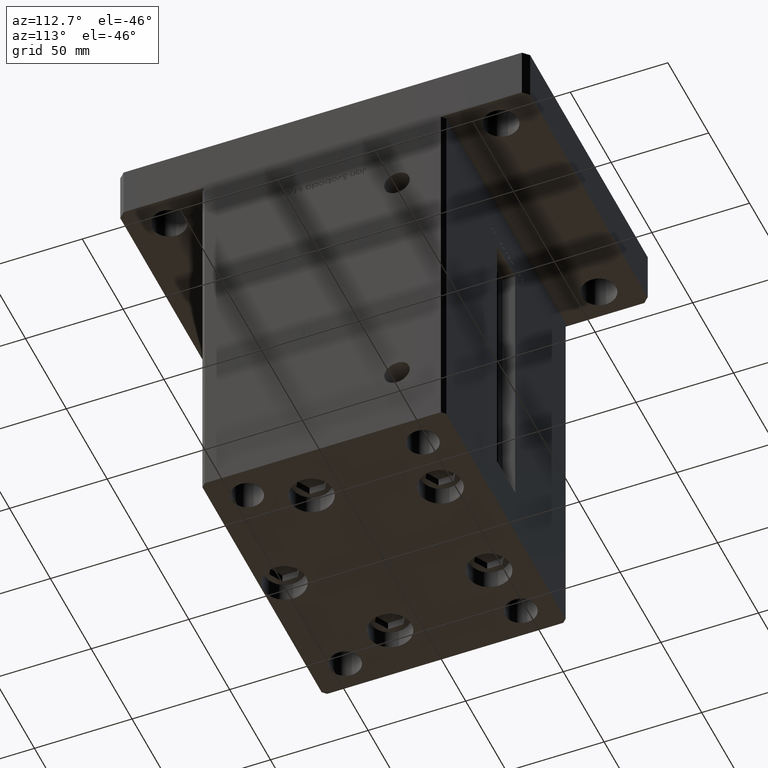
[diagram: clean part render]
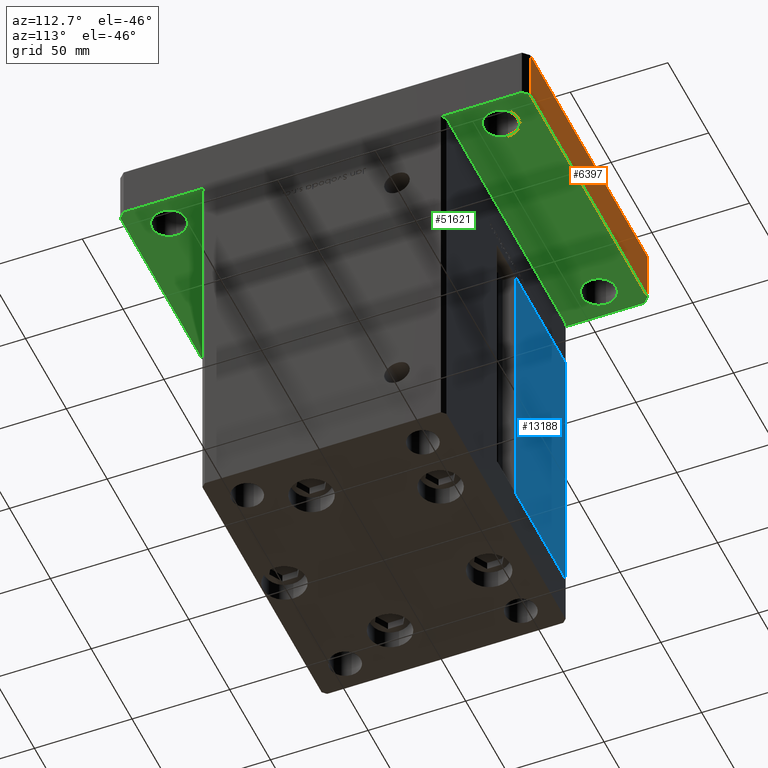
[diagram: same view with three faces highlighted in distinct colors, each labeled with its STEP entity id]
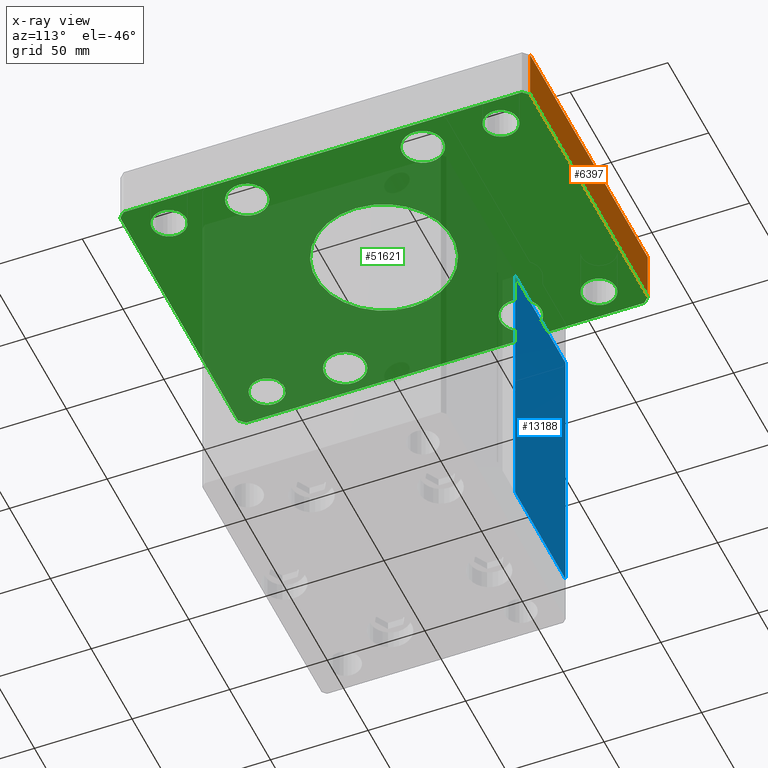
[diagram: x-ray of the same camera — body ghosted, the three highlighted faces saturated]
A machine part, auxiliary view with three faces highlighted in distinct colors.
The next image is the same camera in x-ray (body ghosted, the three faces saturated) — at least one of them is partly hidden behind the body in this view.
Their STEP definitions:

[orange] entity #6397 — the highlighted planar face has unit normal (0, -1, 0).
#948 = VERTEX_POINT ( 'NONE', #41207 ) ;
#1485 = LINE ( 'NONE', #47821, #24096 ) ;
#3086 = VECTOR ( 'NONE', #52375, 1000.000000000000000 ) ;
#5317 = AXIS2_PLACEMENT_3D ( 'NONE', #6323, #14721, #10396 ) ;
#6323 = CARTESIAN_POINT ( 'NONE',  ( 72.00000000000004263, 105.0000000000000284, 27.00000000000000000 ) ) ;
#6397 = ADVANCED_FACE ( 'NONE', ( #30983 ), #43440, .F. ) ;
#6796 = CARTESIAN_POINT ( 'NONE',  ( 72.00000000000004263, 105.0000000000000284, 0.000000000000000000 ) ) ;
#7723 = DIRECTION ( 'NONE',  ( -0.000000000000000000, -0.000000000000000000, -1.000000000000000000 ) ) ;
#9219 = ORIENTED_EDGE ( 'NONE', *, *, #34961, .F. ) ;
#10396 = DIRECTION ( 'NONE',  ( 1.000000000000000000, 1.927470528863118309E-16, 0.000000000000000000 ) ) ;
#10920 = VECTOR ( 'NONE', #7723, 1000.000000000000000 ) ;
#11326 = ORIENTED_EDGE ( 'NONE', *, *, #23750, .T. ) ;
#14451 = VERTEX_POINT ( 'NONE', #6796 ) ;
#14721 = DIRECTION ( 'NONE',  ( 1.927470528863118309E-16, -1.000000000000000000, 0.000000000000000000 ) ) ;
#15074 = VERTEX_POINT ( 'NONE', #44522 ) ;
#18293 = DIRECTION ( 'NONE',  ( -0.000000000000000000, -0.000000000000000000, -1.000000000000000000 ) ) ;
#20325 = ORIENTED_EDGE ( 'NONE', *, *, #43012, .T. ) ;
#20676 = EDGE_LOOP ( 'NONE', ( #11326, #9219, #42609, #20325 ) ) ;
#23750 = EDGE_CURVE ( 'NONE', #14451, #948, #38634, .T. ) ;
#24096 = VECTOR ( 'NONE', #18293, 1000.000000000000000 ) ;
#27256 = CARTESIAN_POINT ( 'NONE',  ( -72.00000000000002842, 105.0000000000000000, 27.00000000000000000 ) ) ;
#28755 = LINE ( 'NONE', #45291, #3086 ) ;
#30983 = FACE_OUTER_BOUND ( 'NONE', #20676, .T. ) ;
#33533 = EDGE_CURVE ( 'NONE', #15074, #53072, #28755, .T. ) ;
#34961 = EDGE_CURVE ( 'NONE', #53072, #948, #44591, .T. ) ;
#38634 = LINE ( 'NONE', #42693, #49887 ) ;
#41207 = CARTESIAN_POINT ( 'NONE',  ( -72.00000000000002842, 105.0000000000000000, 0.000000000000000000 ) ) ;
#42609 = ORIENTED_EDGE ( 'NONE', *, *, #33533, .F. ) ;
#42693 = CARTESIAN_POINT ( 'NONE',  ( 72.00000000000004263, 105.0000000000000284, 0.000000000000000000 ) ) ;
#42936 = CARTESIAN_POINT ( 'NONE',  ( -72.00000000000002842, 105.0000000000000000, 27.00000000000000000 ) ) ;
#43012 = EDGE_CURVE ( 'NONE', #15074, #14451, #1485, .T. ) ;
#43440 = PLANE ( 'NONE',  #5317 ) ;
#44522 = CARTESIAN_POINT ( 'NONE',  ( 72.00000000000004263, 105.0000000000000284, 27.00000000000000000 ) ) ;
#44591 = LINE ( 'NONE', #27256, #10920 ) ;
#45291 = CARTESIAN_POINT ( 'NONE',  ( 72.00000000000004263, 105.0000000000000284, 27.00000000000000000 ) ) ;
#46768 = DIRECTION ( 'NONE',  ( -1.000000000000000000, -1.927470528863118062E-16, 0.000000000000000000 ) ) ;
#47821 = CARTESIAN_POINT ( 'NONE',  ( 72.00000000000004263, 105.0000000000000284, 27.00000000000000000 ) ) ;
#49887 = VECTOR ( 'NONE', #46768, 1000.000000000000000 ) ;
#52375 = DIRECTION ( 'NONE',  ( -1.000000000000000000, -1.927470528863118062E-16, 0.000000000000000000 ) ) ;
#53072 = VERTEX_POINT ( 'NONE', #42936 ) ;

[blue] entity #13188 — the highlighted planar face has unit normal (-0, -1, 0).
#2451 = VERTEX_POINT ( 'NONE', #28893 ) ;
#3032 = CARTESIAN_POINT ( 'NONE',  ( -11.25000000000000178, 62.49999999999999289, 0.000000000000000000 ) ) ;
#4527 = DIRECTION ( 'NONE',  ( -0.000000000000000000, -0.000000000000000000, 1.000000000000000000 ) ) ;
#7475 = VECTOR ( 'NONE', #53492, 1000.000000000000000 ) ;
#7972 = VECTOR ( 'NONE', #4527, 1000.000000000000000 ) ;
#8443 = EDGE_CURVE ( 'NONE', #11455, #2451, #53307, .T. ) ;
#8550 = LINE ( 'NONE', #8822, #35327 ) ;
#8822 = CARTESIAN_POINT ( 'NONE',  ( -11.25000000000000178, 62.49999999999999289, 147.0000000000000000 ) ) ;
#11455 = VERTEX_POINT ( 'NONE', #43471 ) ;
#11592 = CARTESIAN_POINT ( 'NONE',  ( -11.25000000000000178, 62.49999999999999289, 0.000000000000000000 ) ) ;
#13188 = ADVANCED_FACE ( 'NONE', ( #18969 ), #52034, .F. ) ;
#17810 = ORIENTED_EDGE ( 'NONE', *, *, #8443, .F. ) ;
#18969 = FACE_OUTER_BOUND ( 'NONE', #37099, .T. ) ;
#19238 = ORIENTED_EDGE ( 'NONE', *, *, #41152, .T. ) ;
#20743 = CARTESIAN_POINT ( 'NONE',  ( -73.00000000000001421, 62.50000000000000000, 0.000000000000000000 ) ) ;
#24075 = EDGE_CURVE ( 'NONE', #45197, #39885, #49434, .T. ) ;
#27316 = VECTOR ( 'NONE', #36109, 1000.000000000000000 ) ;
#27627 = DIRECTION ( 'NONE',  ( -1.123707514802790025E-16, -1.000000000000000000, 0.000000000000000000 ) ) ;
#28893 = CARTESIAN_POINT ( 'NONE',  ( -11.25000000000000178, 62.49999999999999289, 147.0000000000000000 ) ) ;
#30156 = ORIENTED_EDGE ( 'NONE', *, *, #24075, .F. ) ;
#33574 = EDGE_CURVE ( 'NONE', #11455, #39885, #40167, .T. ) ;
#33983 = AXIS2_PLACEMENT_3D ( 'NONE', #48767, #27627, #39554 ) ;
#35327 = VECTOR ( 'NONE', #45398, 1000.000000000000000 ) ;
#36109 = DIRECTION ( 'NONE',  ( -1.000000000000000000, 1.123707514802790025E-16, 0.000000000000000000 ) ) ;
#37099 = EDGE_LOOP ( 'NONE', ( #19238, #17810, #47288, #30156 ) ) ;
#39554 = DIRECTION ( 'NONE',  ( 1.000000000000000000, -1.123707514802790025E-16, 0.000000000000000000 ) ) ;
#39885 = VERTEX_POINT ( 'NONE', #20743 ) ;
#40167 = LINE ( 'NONE', #3032, #27316 ) ;
#40981 = CARTESIAN_POINT ( 'NONE',  ( -73.00000000000001421, 62.50000000000000000, 147.0000000000000000 ) ) ;
#41152 = EDGE_CURVE ( 'NONE', #45197, #2451, #8550, .T. ) ;
#43471 = CARTESIAN_POINT ( 'NONE',  ( -11.25000000000000178, 62.49999999999999289, 0.000000000000000000 ) ) ;
#45197 = VERTEX_POINT ( 'NONE', #40981 ) ;
#45398 = DIRECTION ( 'NONE',  ( 1.000000000000000000, 0.000000000000000000, 0.000000000000000000 ) ) ;
#47288 = ORIENTED_EDGE ( 'NONE', *, *, #33574, .T. ) ;
#48767 = CARTESIAN_POINT ( 'NONE',  ( -11.25000000000000178, 62.49999999999999289, 147.0000000000000000 ) ) ;
#48904 = CARTESIAN_POINT ( 'NONE',  ( -73.00000000000001421, 62.50000000000000000, 147.0000000000000000 ) ) ;
#49434 = LINE ( 'NONE', #48904, #7475 ) ;
#52034 = PLANE ( 'NONE',  #33983 ) ;
#53307 = LINE ( 'NONE', #11592, #7972 ) ;
#53492 = DIRECTION ( 'NONE',  ( -0.000000000000000000, -0.000000000000000000, -1.000000000000000000 ) ) ;

[green] entity #51621 — the highlighted planar face has unit normal (0, 0, 1).
#502 = CARTESIAN_POINT ( 'NONE',  ( -68.74999999999997158, -85.00000000000001421, 0.000000000000000000 ) ) ;
#608 = CARTESIAN_POINT ( 'NONE',  ( 60.00000000000000000, 45.00000000000000711, 0.000000000000000000 ) ) ;
#730 = CARTESIAN_POINT ( 'NONE',  ( 68.74999999999997158, -85.00000000000001421, 0.000000000000000000 ) ) ;
#948 = VERTEX_POINT ( 'NONE', #41207 ) ;
#1112 = EDGE_LOOP ( 'NONE', ( #14267, #49688 ) ) ;
#1334 = VERTEX_POINT ( 'NONE', #29774 ) ;
#1601 = PLANE ( 'NONE',  #44135 ) ;
#1642 = LINE ( 'NONE', #39302, #46793 ) ;
#1759 = CIRCLE ( 'NONE', #13040, 10.49999999999999467 ) ;
#1982 = ORIENTED_EDGE ( 'NONE', *, *, #2959, .F. ) ;
#2125 = EDGE_LOOP ( 'NONE', ( #21138, #11535 ) ) ;
#2617 = CIRCLE ( 'NONE', #52810, 8.750000000000007105 ) ;
#2660 = CIRCLE ( 'NONE', #18223, 35.00000000000000711 ) ;
#2684 = VERTEX_POINT ( 'NONE', #14518 ) ;
#2808 = EDGE_CURVE ( 'NONE', #37066, #51173, #45038, .T. ) ;
#2959 = EDGE_CURVE ( 'NONE', #15333, #47574, #1642, .T. ) ;
#3508 = CIRCLE ( 'NONE', #14772, 10.50000000000000178 ) ;
#4037 = CARTESIAN_POINT ( 'NONE',  ( -75.00000000000001421, 102.0000000000000000, 0.000000000000000000 ) ) ;
#4343 = DIRECTION ( 'NONE',  ( 0.000000000000000000, 0.000000000000000000, 1.000000000000000000 ) ) ;
#4400 = CARTESIAN_POINT ( 'NONE',  ( 0.000000000000000000, 0.000000000000000000, 0.000000000000000000 ) ) ;
#4515 = DIRECTION ( 'NONE',  ( 0.7071067811865474617, -0.7071067811865474617, 0.000000000000000000 ) ) ;
#4609 = VERTEX_POINT ( 'NONE', #32076 ) ;
#5109 = CIRCLE ( 'NONE', #33669, 10.50000000000000178 ) ;
#5149 = EDGE_CURVE ( 'NONE', #32202, #1334, #30380, .T. ) ;
#5232 = EDGE_CURVE ( 'NONE', #948, #29208, #46879, .T. ) ;
#5371 = EDGE_LOOP ( 'NONE', ( #41903, #14255 ) ) ;
#5435 = CIRCLE ( 'NONE', #40888, 10.49999999999999467 ) ;
#5480 = DIRECTION ( 'NONE',  ( 1.000000000000000000, 0.000000000000000000, 0.000000000000000000 ) ) ;
#5493 = DIRECTION ( 'NONE',  ( 0.7071067811865459074, 0.7071067811865491270, 0.000000000000000000 ) ) ;
#5559 = CARTESIAN_POINT ( 'NONE',  ( 60.00000000000000000, -45.00000000000000711, 0.000000000000000000 ) ) ;
#5941 = FACE_BOUND ( 'NONE', #53375, .T. ) ;
#5976 = VERTEX_POINT ( 'NONE', #42177 ) ;
#6003 = CARTESIAN_POINT ( 'NONE',  ( 49.50000000000000000, -45.00000000000000711, 0.000000000000000000 ) ) ;
#6028 = DIRECTION ( 'NONE',  ( -1.000000000000000000, 0.000000000000000000, 0.000000000000000000 ) ) ;
#6762 = DIRECTION ( 'NONE',  ( 0.000000000000000000, 0.000000000000000000, 1.000000000000000000 ) ) ;
#6796 = CARTESIAN_POINT ( 'NONE',  ( 72.00000000000004263, 105.0000000000000284, 0.000000000000000000 ) ) ;
#6855 = VERTEX_POINT ( 'NONE', #28850 ) ;
#7312 = EDGE_CURVE ( 'NONE', #50404, #37632, #15767, .T. ) ;
#8360 = DIRECTION ( 'NONE',  ( 1.000000000000000000, 0.000000000000000000, 0.000000000000000000 ) ) ;
#9227 = FACE_BOUND ( 'NONE', #5371, .T. ) ;
#9475 = ORIENTED_EDGE ( 'NONE', *, *, #10039, .T. ) ;
#9562 = AXIS2_PLACEMENT_3D ( 'NONE', #33017, #32481, #8360 ) ;
#9815 = ORIENTED_EDGE ( 'NONE', *, *, #49256, .F. ) ;
#9922 = CIRCLE ( 'NONE', #35018, 8.750000000000007105 ) ;
#10025 = DIRECTION ( 'NONE',  ( -0.7071067811865459074, -0.7071067811865491270, 0.000000000000000000 ) ) ;
#10039 = EDGE_CURVE ( 'NONE', #1334, #32202, #5435, .T. ) ;
#10588 = VECTOR ( 'NONE', #41607, 1000.000000000000000 ) ;
#10648 = CARTESIAN_POINT ( 'NONE',  ( 60.00000000000000000, 84.99999999999998579, 0.000000000000000000 ) ) ;
#11251 = CARTESIAN_POINT ( 'NONE',  ( 60.00000000000000000, 84.99999999999998579, 0.000000000000000000 ) ) ;
#11535 = ORIENTED_EDGE ( 'NONE', *, *, #49061, .T. ) ;
#11854 = EDGE_CURVE ( 'NONE', #47574, #29749, #17695, .T. ) ;
#11994 = CARTESIAN_POINT ( 'NONE',  ( 75.00000000000001421, 102.0000000000000142, 0.000000000000000000 ) ) ;
#12159 = AXIS2_PLACEMENT_3D ( 'NONE', #53169, #16044, #24703 ) ;
#12423 = EDGE_CURVE ( 'NONE', #29749, #31645, #12624, .T. ) ;
#12624 = LINE ( 'NONE', #29151, #10588 ) ;
#12694 = DIRECTION ( 'NONE',  ( 0.000000000000000000, 0.000000000000000000, 1.000000000000000000 ) ) ;
#13040 = AXIS2_PLACEMENT_3D ( 'NONE', #5559, #18031, #51087 ) ;
#13504 = CARTESIAN_POINT ( 'NONE',  ( -60.00000000000000000, 45.00000000000001421, 0.000000000000000000 ) ) ;
#13551 = FACE_BOUND ( 'NONE', #28147, .T. ) ;
#13703 = EDGE_CURVE ( 'NONE', #28355, #19164, #52160, .T. ) ;
#13738 = EDGE_CURVE ( 'NONE', #39657, #15333, #16986, .T. ) ;
#14255 = ORIENTED_EDGE ( 'NONE', *, *, #48698, .T. ) ;
#14267 = ORIENTED_EDGE ( 'NONE', *, *, #16553, .T. ) ;
#14451 = VERTEX_POINT ( 'NONE', #6796 ) ;
#14518 = CARTESIAN_POINT ( 'NONE',  ( -68.75000000000000000, 84.99999999999997158, 0.000000000000000000 ) ) ;
#14743 = AXIS2_PLACEMENT_3D ( 'NONE', #50724, #22978, #27848 ) ;
#14772 = AXIS2_PLACEMENT_3D ( 'NONE', #13504, #12694, #49554 ) ;
#14824 = EDGE_LOOP ( 'NONE', ( #52243, #34977 ) ) ;
#15080 = ORIENTED_EDGE ( 'NONE', *, *, #7312, .F. ) ;
#15333 = VERTEX_POINT ( 'NONE', #19801 ) ;
#15631 = ORIENTED_EDGE ( 'NONE', *, *, #18850, .T. ) ;
#15767 = CIRCLE ( 'NONE', #49493, 35.00000000000000711 ) ;
#16044 = DIRECTION ( 'NONE',  ( 0.000000000000000000, 0.000000000000000000, 1.000000000000000000 ) ) ;
#16267 = EDGE_CURVE ( 'NONE', #2684, #37175, #27122, .T. ) ;
#16553 = EDGE_CURVE ( 'NONE', #51173, #37066, #20198, .T. ) ;
#16986 = LINE ( 'NONE', #41629, #37458 ) ;
#17049 = CARTESIAN_POINT ( 'NONE',  ( -75.00000000000001421, 102.0000000000000000, 0.000000000000000000 ) ) ;
#17268 = AXIS2_PLACEMENT_3D ( 'NONE', #27799, #39997, #22932 ) ;
#17695 = LINE ( 'NONE', #34222, #33093 ) ;
#17951 = DIRECTION ( 'NONE',  ( 0.000000000000000000, 0.000000000000000000, 1.000000000000000000 ) ) ;
#18031 = DIRECTION ( 'NONE',  ( 0.000000000000000000, 0.000000000000000000, 1.000000000000000000 ) ) ;
#18078 = AXIS2_PLACEMENT_3D ( 'NONE', #23255, #19192, #23794 ) ;
#18143 = DIRECTION ( 'NONE',  ( 1.000000000000000000, 0.000000000000000000, -0.000000000000000000 ) ) ;
#18223 = AXIS2_PLACEMENT_3D ( 'NONE', #25299, #45350, #6028 ) ;
#18850 = EDGE_CURVE ( 'NONE', #37175, #2684, #9922, .T. ) ;
#19164 = VERTEX_POINT ( 'NONE', #33778 ) ;
#19192 = DIRECTION ( 'NONE',  ( 0.000000000000000000, 0.000000000000000000, 1.000000000000000000 ) ) ;
#19436 = CARTESIAN_POINT ( 'NONE',  ( -70.50000000000000000, -45.00000000000000000, 0.000000000000000000 ) ) ;
#19801 = CARTESIAN_POINT ( 'NONE',  ( -71.99999999999998579, -105.0000000000000142, 0.000000000000000000 ) ) ;
#20198 = CIRCLE ( 'NONE', #40128, 8.750000000000007105 ) ;
#20766 = AXIS2_PLACEMENT_3D ( 'NONE', #39686, #26166, #26951 ) ;
#20941 = DIRECTION ( 'NONE',  ( 0.000000000000000000, 0.000000000000000000, -1.000000000000000000 ) ) ;
#21138 = ORIENTED_EDGE ( 'NONE', *, *, #46909, .T. ) ;
#21956 = DIRECTION ( 'NONE',  ( 0.000000000000000000, 0.000000000000000000, 1.000000000000000000 ) ) ;
#22114 = CARTESIAN_POINT ( 'NONE',  ( 68.75000000000000000, 84.99999999999998579, 0.000000000000000000 ) ) ;
#22181 = EDGE_LOOP ( 'NONE', ( #25938, #9475 ) ) ;
#22517 = DIRECTION ( 'NONE',  ( 1.000000000000000000, 7.709882115452476194E-16, 0.000000000000000000 ) ) ;
#22660 = VERTEX_POINT ( 'NONE', #19436 ) ;
#22932 = DIRECTION ( 'NONE',  ( 1.000000000000000000, 0.000000000000000000, 0.000000000000000000 ) ) ;
#22978 = DIRECTION ( 'NONE',  ( 0.000000000000000000, 0.000000000000000000, 1.000000000000000000 ) ) ;
#23255 = CARTESIAN_POINT ( 'NONE',  ( -59.99999999999997158, -85.00000000000001421, 0.000000000000000000 ) ) ;
#23279 = ORIENTED_EDGE ( 'NONE', *, *, #5232, .F. ) ;
#23392 = VERTEX_POINT ( 'NONE', #502 ) ;
#23399 = EDGE_CURVE ( 'NONE', #29208, #39657, #25444, .T. ) ;
#23750 = EDGE_CURVE ( 'NONE', #14451, #948, #38634, .T. ) ;
#23794 = DIRECTION ( 'NONE',  ( 1.000000000000000000, 0.000000000000000000, 0.000000000000000000 ) ) ;
#24301 = DIRECTION ( 'NONE',  ( 1.000000000000000000, 0.000000000000000000, 0.000000000000000000 ) ) ;
#24703 = DIRECTION ( 'NONE',  ( 1.000000000000000000, 0.000000000000000000, 0.000000000000000000 ) ) ;
#25299 = CARTESIAN_POINT ( 'NONE',  ( 0.000000000000000000, 0.000000000000000000, 0.000000000000000000 ) ) ;
#25386 = DIRECTION ( 'NONE',  ( 0.000000000000000000, 0.000000000000000000, 1.000000000000000000 ) ) ;
#25444 = LINE ( 'NONE', #17049, #38615 ) ;
#25568 = ORIENTED_EDGE ( 'NONE', *, *, #13738, .F. ) ;
#25643 = DIRECTION ( 'NONE',  ( 1.000000000000000000, 0.000000000000000000, 0.000000000000000000 ) ) ;
#25938 = ORIENTED_EDGE ( 'NONE', *, *, #5149, .T. ) ;
#26009 = DIRECTION ( 'NONE',  ( 0.000000000000000000, 0.000000000000000000, 1.000000000000000000 ) ) ;
#26166 = DIRECTION ( 'NONE',  ( 0.000000000000000000, 0.000000000000000000, 1.000000000000000000 ) ) ;
#26373 = CARTESIAN_POINT ( 'NONE',  ( -51.24999999999996447, -85.00000000000001421, 0.000000000000000000 ) ) ;
#26951 = DIRECTION ( 'NONE',  ( 1.000000000000000000, 0.000000000000000000, 0.000000000000000000 ) ) ;
#27122 = CIRCLE ( 'NONE', #53081, 8.750000000000007105 ) ;
#27615 = CIRCLE ( 'NONE', #17268, 8.750000000000007105 ) ;
#27739 = CIRCLE ( 'NONE', #14743, 10.50000000000000178 ) ;
#27799 = CARTESIAN_POINT ( 'NONE',  ( -59.99999999999997158, -85.00000000000001421, 0.000000000000000000 ) ) ;
#27848 = DIRECTION ( 'NONE',  ( 1.000000000000000000, 0.000000000000000000, 0.000000000000000000 ) ) ;
#28145 = CARTESIAN_POINT ( 'NONE',  ( -60.00000000000000711, 84.99999999999997158, 0.000000000000000000 ) ) ;
#28147 = EDGE_LOOP ( 'NONE', ( #9815, #15080 ) ) ;
#28355 = VERTEX_POINT ( 'NONE', #22114 ) ;
#28677 = VERTEX_POINT ( 'NONE', #26373 ) ;
#28709 = ORIENTED_EDGE ( 'NONE', *, *, #13703, .T. ) ;
#28783 = DIRECTION ( 'NONE',  ( -0.7071067811865426878, 0.7071067811865524577, 0.000000000000000000 ) ) ;
#28850 = CARTESIAN_POINT ( 'NONE',  ( -49.49999999999999289, 45.00000000000001421, 0.000000000000000000 ) ) ;
#29046 = ORIENTED_EDGE ( 'NONE', *, *, #23399, .F. ) ;
#29151 = CARTESIAN_POINT ( 'NONE',  ( 75.00000000000000000, -101.9999999999999005, 0.000000000000000000 ) ) ;
#29208 = VERTEX_POINT ( 'NONE', #4037 ) ;
#29441 = CARTESIAN_POINT ( 'NONE',  ( -60.00000000000000000, 45.00000000000001421, 0.000000000000000000 ) ) ;
#29540 = VECTOR ( 'NONE', #10025, 1000.000000000000114 ) ;
#29749 = VERTEX_POINT ( 'NONE', #52597 ) ;
#29774 = CARTESIAN_POINT ( 'NONE',  ( 70.50000000000000000, 45.00000000000000711, 0.000000000000000000 ) ) ;
#30301 = CARTESIAN_POINT ( 'NONE',  ( 75.00000000000001421, 102.0000000000000142, 0.000000000000000000 ) ) ;
#30380 = CIRCLE ( 'NONE', #51167, 10.49999999999999467 ) ;
#30600 = FACE_BOUND ( 'NONE', #1112, .T. ) ;
#30606 = DIRECTION ( 'NONE',  ( 1.000000000000000000, 0.000000000000000000, 0.000000000000000000 ) ) ;
#30801 = ORIENTED_EDGE ( 'NONE', *, *, #11854, .F. ) ;
#31122 = ORIENTED_EDGE ( 'NONE', *, *, #45557, .T. ) ;
#31532 = CARTESIAN_POINT ( 'NONE',  ( 51.24999999999995737, -85.00000000000001421, 0.000000000000000000 ) ) ;
#31645 = VERTEX_POINT ( 'NONE', #30301 ) ;
#31747 = DIRECTION ( 'NONE',  ( 1.000000000000000000, 0.000000000000000000, 0.000000000000000000 ) ) ;
#32076 = CARTESIAN_POINT ( 'NONE',  ( -49.49999999999999289, -45.00000000000000000, 0.000000000000000000 ) ) ;
#32202 = VERTEX_POINT ( 'NONE', #45633 ) ;
#32481 = DIRECTION ( 'NONE',  ( 0.000000000000000000, 0.000000000000000000, 1.000000000000000000 ) ) ;
#32906 = CIRCLE ( 'NONE', #9562, 10.50000000000000178 ) ;
#33017 = CARTESIAN_POINT ( 'NONE',  ( -60.00000000000000000, -45.00000000000000000, 0.000000000000000000 ) ) ;
#33093 = VECTOR ( 'NONE', #5493, 1000.000000000000114 ) ;
#33578 = DIRECTION ( 'NONE',  ( 1.360567432138672081E-16, -1.000000000000000000, 0.000000000000000000 ) ) ;
#33669 = AXIS2_PLACEMENT_3D ( 'NONE', #29441, #25386, #24301 ) ;
#33778 = CARTESIAN_POINT ( 'NONE',  ( 51.24999999999998579, 84.99999999999998579, 0.000000000000000000 ) ) ;
#34222 = CARTESIAN_POINT ( 'NONE',  ( 72.00000000000001421, -104.9999999999999005, 0.000000000000000000 ) ) ;
#34675 = FACE_BOUND ( 'NONE', #2125, .T. ) ;
#34827 = AXIS2_PLACEMENT_3D ( 'NONE', #10648, #50311, #25643 ) ;
#34977 = ORIENTED_EDGE ( 'NONE', *, *, #53531, .T. ) ;
#35018 = AXIS2_PLACEMENT_3D ( 'NONE', #28145, #6762, #40871 ) ;
#35544 = DIRECTION ( 'NONE',  ( 0.000000000000000000, 0.000000000000000000, 1.000000000000000000 ) ) ;
#36175 = DIRECTION ( 'NONE',  ( 0.000000000000000000, 0.000000000000000000, 1.000000000000000000 ) ) ;
#37066 = VERTEX_POINT ( 'NONE', #730 ) ;
#37175 = VERTEX_POINT ( 'NONE', #38921 ) ;
#37458 = VECTOR ( 'NONE', #4515, 1000.000000000000114 ) ;
#37465 = DIRECTION ( 'NONE',  ( -1.000000000000000000, 0.000000000000000000, 0.000000000000000000 ) ) ;
#37632 = VERTEX_POINT ( 'NONE', #41255 ) ;
#37872 = VERTEX_POINT ( 'NONE', #6003 ) ;
#38201 = FACE_BOUND ( 'NONE', #14824, .T. ) ;
#38615 = VECTOR ( 'NONE', #33578, 1000.000000000000000 ) ;
#38634 = LINE ( 'NONE', #42693, #49887 ) ;
#38742 = CARTESIAN_POINT ( 'NONE',  ( 60.00000000000000000, 45.00000000000000711, 0.000000000000000000 ) ) ;
#38921 = CARTESIAN_POINT ( 'NONE',  ( -51.25000000000000000, 84.99999999999997158, 0.000000000000000000 ) ) ;
#39302 = CARTESIAN_POINT ( 'NONE',  ( -71.99999999999998579, -105.0000000000000142, 0.000000000000000000 ) ) ;
#39472 = EDGE_LOOP ( 'NONE', ( #43282, #15631 ) ) ;
#39532 = ORIENTED_EDGE ( 'NONE', *, *, #12423, .F. ) ;
#39657 = VERTEX_POINT ( 'NONE', #44931 ) ;
#39686 = CARTESIAN_POINT ( 'NONE',  ( 60.00000000000000000, -45.00000000000000711, 0.000000000000000000 ) ) ;
#39997 = DIRECTION ( 'NONE',  ( 0.000000000000000000, 0.000000000000000000, 1.000000000000000000 ) ) ;
#40128 = AXIS2_PLACEMENT_3D ( 'NONE', #43663, #35544, #31747 ) ;
#40349 = ORIENTED_EDGE ( 'NONE', *, *, #44535, .T. ) ;
#40871 = DIRECTION ( 'NONE',  ( 1.000000000000000000, 0.000000000000000000, 0.000000000000000000 ) ) ;
#40888 = AXIS2_PLACEMENT_3D ( 'NONE', #608, #17951, #5480 ) ;
#40926 = DIRECTION ( 'NONE',  ( 1.000000000000000000, 0.000000000000000000, 0.000000000000000000 ) ) ;
#40996 = ORIENTED_EDGE ( 'NONE', *, *, #45186, .F. ) ;
#41207 = CARTESIAN_POINT ( 'NONE',  ( -72.00000000000002842, 105.0000000000000000, 0.000000000000000000 ) ) ;
#41255 = CARTESIAN_POINT ( 'NONE',  ( -35.00000000000000711, 0.000000000000000000, 0.000000000000000000 ) ) ;
#41607 = DIRECTION ( 'NONE',  ( 6.802837160693364103E-17, 1.000000000000000000, 0.000000000000000000 ) ) ;
#41629 = CARTESIAN_POINT ( 'NONE',  ( -74.99999999999998579, -102.0000000000000142, 0.000000000000000000 ) ) ;
#41903 = ORIENTED_EDGE ( 'NONE', *, *, #43669, .T. ) ;
#42003 = CARTESIAN_POINT ( 'NONE',  ( -72.00000000000002842, 105.0000000000000000, 0.000000000000000000 ) ) ;
#42177 = CARTESIAN_POINT ( 'NONE',  ( 70.50000000000000000, -45.00000000000000711, 0.000000000000000000 ) ) ;
#42526 = CARTESIAN_POINT ( 'NONE',  ( 0.000000000000000000, 0.000000000000000000, 0.000000000000000000 ) ) ;
#42693 = CARTESIAN_POINT ( 'NONE',  ( 72.00000000000004263, 105.0000000000000284, 0.000000000000000000 ) ) ;
#43282 = ORIENTED_EDGE ( 'NONE', *, *, #16267, .T. ) ;
#43361 = CARTESIAN_POINT ( 'NONE',  ( 35.00000000000000711, 4.286263797015737285E-15, 0.000000000000000000 ) ) ;
#43663 = CARTESIAN_POINT ( 'NONE',  ( 59.99999999999997158, -85.00000000000001421, 0.000000000000000000 ) ) ;
#43669 = EDGE_CURVE ( 'NONE', #52792, #6855, #5109, .T. ) ;
#44135 = AXIS2_PLACEMENT_3D ( 'NONE', #42526, #26009, #18143 ) ;
#44141 = CIRCLE ( 'NONE', #20766, 10.49999999999999467 ) ;
#44535 = EDGE_CURVE ( 'NONE', #23392, #28677, #50955, .T. ) ;
#44931 = CARTESIAN_POINT ( 'NONE',  ( -74.99999999999998579, -102.0000000000000142, 0.000000000000000000 ) ) ;
#45038 = CIRCLE ( 'NONE', #12159, 8.750000000000007105 ) ;
#45186 = EDGE_CURVE ( 'NONE', #31645, #14451, #49126, .T. ) ;
#45267 = CARTESIAN_POINT ( 'NONE',  ( -60.00000000000000711, 84.99999999999997158, 0.000000000000000000 ) ) ;
#45350 = DIRECTION ( 'NONE',  ( 0.000000000000000000, 0.000000000000000000, -1.000000000000000000 ) ) ;
#45557 = EDGE_CURVE ( 'NONE', #28677, #23392, #27615, .T. ) ;
#45633 = CARTESIAN_POINT ( 'NONE',  ( 49.50000000000000000, 45.00000000000000711, 0.000000000000000000 ) ) ;
#45766 = EDGE_LOOP ( 'NONE', ( #48487, #28709 ) ) ;
#46344 = FACE_BOUND ( 'NONE', #22181, .T. ) ;
#46768 = DIRECTION ( 'NONE',  ( -1.000000000000000000, -1.927470528863118062E-16, 0.000000000000000000 ) ) ;
#46793 = VECTOR ( 'NONE', #22517, 1000.000000000000000 ) ;
#46871 = FACE_OUTER_BOUND ( 'NONE', #49877, .T. ) ;
#46879 = LINE ( 'NONE', #42003, #29540 ) ;
#46909 = EDGE_CURVE ( 'NONE', #37872, #5976, #44141, .T. ) ;
#47542 = VECTOR ( 'NONE', #28783, 1000.000000000000000 ) ;
#47574 = VERTEX_POINT ( 'NONE', #48974 ) ;
#47759 = EDGE_CURVE ( 'NONE', #19164, #28355, #2617, .T. ) ;
#48136 = EDGE_CURVE ( 'NONE', #22660, #4609, #27739, .T. ) ;
#48375 = DIRECTION ( 'NONE',  ( 1.000000000000000000, 0.000000000000000000, 0.000000000000000000 ) ) ;
#48487 = ORIENTED_EDGE ( 'NONE', *, *, #47759, .T. ) ;
#48698 = EDGE_CURVE ( 'NONE', #6855, #52792, #3508, .T. ) ;
#48974 = CARTESIAN_POINT ( 'NONE',  ( 72.00000000000001421, -104.9999999999999005, 0.000000000000000000 ) ) ;
#49061 = EDGE_CURVE ( 'NONE', #5976, #37872, #1759, .T. ) ;
#49126 = LINE ( 'NONE', #11994, #47542 ) ;
#49256 = EDGE_CURVE ( 'NONE', #37632, #50404, #2660, .T. ) ;
#49493 = AXIS2_PLACEMENT_3D ( 'NONE', #4400, #20941, #37465 ) ;
#49554 = DIRECTION ( 'NONE',  ( 1.000000000000000000, 0.000000000000000000, 0.000000000000000000 ) ) ;
#49688 = ORIENTED_EDGE ( 'NONE', *, *, #2808, .T. ) ;
#49877 = EDGE_LOOP ( 'NONE', ( #1982, #25568, #29046, #23279, #50855, #40996, #39532, #30801 ) ) ;
#49887 = VECTOR ( 'NONE', #46768, 1000.000000000000000 ) ;
#50142 = FACE_BOUND ( 'NONE', #39472, .T. ) ;
#50311 = DIRECTION ( 'NONE',  ( 0.000000000000000000, 0.000000000000000000, 1.000000000000000000 ) ) ;
#50404 = VERTEX_POINT ( 'NONE', #43361 ) ;
#50724 = CARTESIAN_POINT ( 'NONE',  ( -60.00000000000000000, -45.00000000000000000, 0.000000000000000000 ) ) ;
#50855 = ORIENTED_EDGE ( 'NONE', *, *, #23750, .F. ) ;
#50941 = FACE_BOUND ( 'NONE', #45766, .T. ) ;
#50955 = CIRCLE ( 'NONE', #18078, 8.750000000000007105 ) ;
#51087 = DIRECTION ( 'NONE',  ( 1.000000000000000000, 0.000000000000000000, 0.000000000000000000 ) ) ;
#51167 = AXIS2_PLACEMENT_3D ( 'NONE', #38742, #21956, #30606 ) ;
#51173 = VERTEX_POINT ( 'NONE', #31532 ) ;
#51621 = ADVANCED_FACE ( 'NONE', ( #13551, #46871, #5941, #50941, #50142, #38201, #34675, #46344, #9227, #30600 ), #1601, .F. ) ;
#52160 = CIRCLE ( 'NONE', #34827, 8.750000000000007105 ) ;
#52243 = ORIENTED_EDGE ( 'NONE', *, *, #48136, .T. ) ;
#52597 = CARTESIAN_POINT ( 'NONE',  ( 75.00000000000000000, -101.9999999999999005, 0.000000000000000000 ) ) ;
#52792 = VERTEX_POINT ( 'NONE', #53600 ) ;
#52810 = AXIS2_PLACEMENT_3D ( 'NONE', #11251, #36175, #48375 ) ;
#53081 = AXIS2_PLACEMENT_3D ( 'NONE', #45267, #4343, #40926 ) ;
#53169 = CARTESIAN_POINT ( 'NONE',  ( 59.99999999999997158, -85.00000000000001421, 0.000000000000000000 ) ) ;
#53375 = EDGE_LOOP ( 'NONE', ( #40349, #31122 ) ) ;
#53531 = EDGE_CURVE ( 'NONE', #4609, #22660, #32906, .T. ) ;
#53600 = CARTESIAN_POINT ( 'NONE',  ( -70.50000000000000000, 45.00000000000001421, 0.000000000000000000 ) ) ;